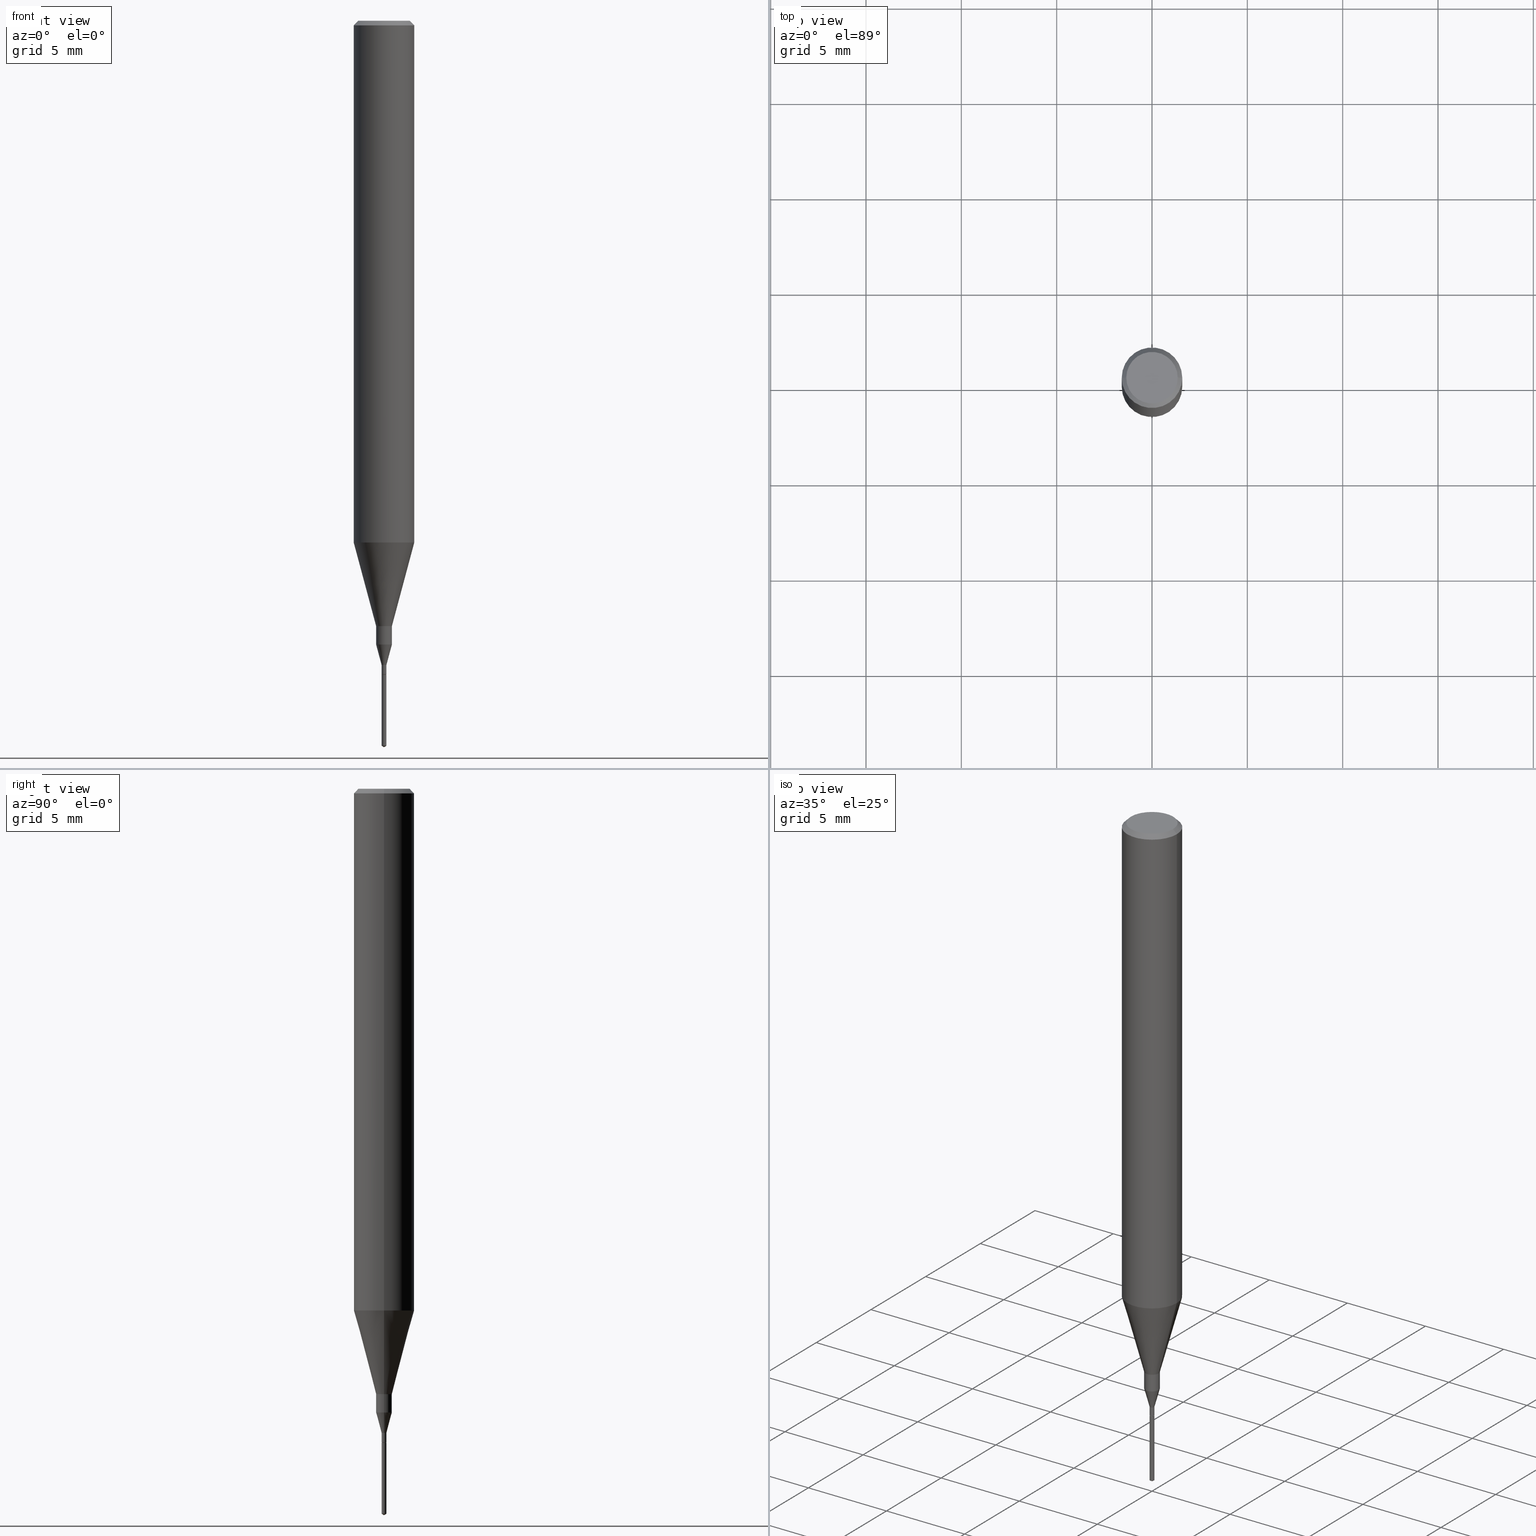
[diagram: canonical four-view strip — front | top / right | iso, engineering-drawing reading convention]
A machine part, canonical four-view strip (front | top / right | iso — engineering-drawing reading convention). The complete STEP part file that produces these views, byte-faithful:
ISO-10303-21;
HEADER;
FILE_DESCRIPTION (( 'STEP AP203' ),
    '1' );
FILE_NAME ('07090.STEP',
    '2024-04-19T13:29:49',
    ( '' ),
    ( '' ),
    'SwSTEP 2.0',
    'SolidWorks 2023',
    '' );
FILE_SCHEMA (( 'CONFIG_CONTROL_DESIGN' ));
ENDSEC;

DATA;
#1 = ORIENTED_EDGE ( 'NONE', *, *, #420, .F. ) ;
#2 = ORIENTED_EDGE ( 'NONE', *, *, #63, .T. ) ;
#3 = FACE_OUTER_BOUND ( 'NONE', #431, .T. ) ;
#4 = AXIS2_PLACEMENT_3D ( 'NONE', #442, #258, #283 ) ;
#5 = ORIENTED_EDGE ( 'NONE', *, *, #132, .F. ) ;
#6 = ORIENTED_EDGE ( 'NONE', *, *, #505, .T. ) ;
#7 = AXIS2_PLACEMENT_3D ( 'NONE', #215, #268, #448 ) ;
#8 = DIRECTION ( 'NONE',  ( 2.449828643397946138E-29, -3.485237803807878340E-15, -1.000000000000000000 ) ) ;
#9 = DIRECTION ( 'NONE',  ( 2.438088387897960049E-29, -3.491481338843145188E-15, -1.000000000000000000 ) ) ;
#10 = PRODUCT_RELATED_PRODUCT_CATEGORY ( 'detail', '', ( #350 ) ) ;
#11 = FACE_OUTER_BOUND ( 'NONE', #311, .T. ) ;
#12 = CARTESIAN_POINT ( 'NONE',  ( 0.06250000000000012490, -4.198131499960668153E-15, -1.077392650149939346 ) ) ;
#13 = CARTESIAN_POINT ( 'NONE',  ( 0.06250000000000000000, -4.615137624123754923E-16, -0.009375000000000067307 ) ) ;
#14 = DIRECTION ( 'NONE',  ( -2.445468806185136877E-29, 3.491481338843145188E-15, 1.000000000000000000 ) ) ;
#15 = ORIENTED_EDGE ( 'NONE', *, *, #117, .F. ) ;
#16 = CARTESIAN_POINT ( 'NONE',  ( -0.01624999999999999709, -4.315251812701535156E-15, -1.250000000000000000 ) ) ;
#17 = CARTESIAN_POINT ( 'NONE',  ( 2.634730117954813298E-29, -3.761696332605275695E-15, -1.077392650149939346 ) ) ;
#18 = CARTESIAN_POINT ( 'NONE',  ( 2.634730117954813298E-29, -3.761696332605275695E-15, -1.077392650149939346 ) ) ;
#19 = CONICAL_SURFACE ( 'NONE', #72, 0.06250000000000012490, 0.2617993877991501295 ) ;
#20 = ORIENTED_EDGE ( 'NONE', *, *, #63, .F. ) ;
#21 = CC_DESIGN_APPROVAL ( #244, ( #36 ) ) ;
#22 = EDGE_CURVE ( 'NONE', #37, #411, #98, .T. ) ;
#23 = DIRECTION ( 'NONE',  ( -2.445468806185136877E-29, 3.491481338843145188E-15, 1.000000000000000000 ) ) ;
#24 = DIRECTION ( 'NONE',  ( -1.000000000000000000, 6.982962677686266711E-15, 0.000000000000000000 ) ) ;
#25 = DIRECTION ( 'NONE',  ( -2.445468806185136597E-29, 3.491481338843145583E-15, 1.000000000000000000 ) ) ;
#26 = EDGE_CURVE ( 'NONE', #583, #462, #249, .T. ) ;
#27 = AXIS2_PLACEMENT_3D ( 'NONE', #418, #514, #424 ) ;
#28 = ADVANCED_FACE ( 'NONE', ( #49 ), #80, .T. ) ;
#29 = PERSON_AND_ORGANIZATION ( #222, #561 ) ;
#30 = ADVANCED_FACE ( 'NONE', ( #158 ), #552, .T. ) ;
#31 = ORIENTED_EDGE ( 'NONE', *, *, #586, .T. ) ;
#32 = DIRECTION ( 'NONE',  ( 1.000000000000000000, -6.982962677686224112E-15, 0.000000000000000000 ) ) ;
#33 = DIRECTION ( 'NONE',  ( 1.000000000000000000, -6.982962677686258033E-15, 0.000000000000000000 ) ) ;
#34 = LINE ( 'NONE', #115, #294 ) ;
#35 = CIRCLE ( 'NONE', #192, 0.005000000000000000104 ) ;
#36 = PRODUCT_DEFINITION_FORMATION_WITH_SPECIFIED_SOURCE ( 'ANY', '', #350, .NOT_KNOWN. ) ;
#37 = VERTEX_POINT ( 'NONE', #426 ) ;
#38 = DIRECTION ( 'NONE',  ( -6.982962677686265922E-15, -1.000000000000000000, 0.000000000000000000 ) ) ;
#39 = VECTOR ( 'NONE', #154, 39.37007874015748854 ) ;
#40 = EDGE_LOOP ( 'NONE', ( #573, #246, #502, #363 ) ) ;
#41 = CARTESIAN_POINT ( 'NONE',  ( 3.661497157083708426E-29, -5.225814767288156077E-15, -1.496995696904862116 ) ) ;
#42 = EDGE_LOOP ( 'NONE', ( #234, #590, #138, #128 ) ) ;
#43 = MANIFOLD_SOLID_BREP ( 'Body-Move/Copy2[1]', #203 ) ;
#44 = ORIENTED_EDGE ( 'NONE', *, *, #292, .T. ) ;
#45 = ORIENTED_EDGE ( 'NONE', *, *, #491, .F. ) ;
#46 = DIRECTION ( 'NONE',  ( -0.7071067811868059216, 7.493145998871288171E-15, 0.7071067811862891128 ) ) ;
#47 = AXIS2_PLACEMENT_3D ( 'NONE', #522, #464, #478 ) ;
#48 = EDGE_CURVE ( 'NONE', #462, #583, #405, .T. ) ;
#49 = FACE_OUTER_BOUND ( 'NONE', #42, .T. ) ;
#50 = CARTESIAN_POINT ( 'NONE',  ( 3.301382888349935078E-29, -4.713499807438246596E-15, -1.350000000000000089 ) ) ;
#51 = EDGE_LOOP ( 'NONE', ( #188, #498, #330, #369 ) ) ;
#52 = CIRCLE ( 'NONE', #366, 0.06250000000000012490 ) ;
#53 = VERTEX_POINT ( 'NONE', #511 ) ;
#54 = SECURITY_CLASSIFICATION ( '', '', #81 ) ;
#55 = DIRECTION ( 'NONE',  ( -2.445468806185136597E-29, 3.491481338843145583E-15, 1.000000000000000000 ) ) ;
#56 = CARTESIAN_POINT ( 'NONE',  ( 3.149799106604895177E-29, -4.497078340971170212E-15, -1.288014428414850254 ) ) ;
#57 = CARTESIAN_POINT ( 'NONE',  ( 0.000000000000000000, 0.000000000000000000, 0.000000000000000000 ) ) ;
#58 = CARTESIAN_POINT ( 'NONE',  ( 0.000000000000000000, 0.000000000000000000, 0.000000000000000000 ) ) ;
#59 = CARTESIAN_POINT ( 'NONE',  ( -3.491481338839831972E-17, -0.005000000000004713348, -1.350000000000000089 ) ) ;
#60 = EDGE_CURVE ( 'NONE', #53, #245, #242, .T. ) ;
#61 = AXIS2_PLACEMENT_3D ( 'NONE', #97, #229, #412 ) ;
#62 = FACE_OUTER_BOUND ( 'NONE', #452, .T. ) ;
#63 = EDGE_CURVE ( 'NONE', #501, #281, #198, .T. ) ;
#64 = CARTESIAN_POINT ( 'NONE',  ( 3.674846187787069844E-29, -5.227856705711817904E-15, -1.500000000000000222 ) ) ;
#65 = AXIS2_PLACEMENT_3D ( 'NONE', #252, #9, #558 ) ;
#66 = CARTESIAN_POINT ( 'NONE',  ( -9.278108940561071411E-28, 1.319778012860802633E-13, 37.87007874015748143 ) ) ;
#67 = CARTESIAN_POINT ( 'NONE',  ( 3.301382888349935078E-29, -4.713499807438246596E-15, -1.350000000000000089 ) ) ;
#68 = APPLICATION_PROTOCOL_DEFINITION ( 'international standard', 'config_control_design', 1994, #177 ) ;
#69 = DATE_AND_TIME ( #172, #276 ) ;
#70 = EDGE_CURVE ( 'NONE', #541, #456, #284, .T. ) ;
#71 = DIRECTION ( 'NONE',  ( -2.449828643397946418E-29, 3.485237803807878340E-15, 1.000000000000000000 ) ) ;
#72 = AXIS2_PLACEMENT_3D ( 'NONE', #153, #340, #385 ) ;
#73 = DIRECTION ( 'NONE',  ( 0.000000000000000000, 0.000000000000000000, 1.000000000000000000 ) ) ;
#74 = CONICAL_SURFACE ( 'NONE', #101, 65.52281426576574574, 1.029744258676636326 ) ;
#75 = DIRECTION ( 'NONE',  ( -2.445468806185136597E-29, 3.491481338843145583E-15, 1.000000000000000000 ) ) ;
#76 = CARTESIAN_POINT ( 'NONE',  ( -3.491481338839831972E-17, -0.005000000000004713348, -1.350000000000000089 ) ) ;
#77 = EDGE_CURVE ( 'NONE', #182, #548, #251, .T. ) ;
#78 = ADVANCED_FACE ( 'NONE', ( #214 ), #572, .T. ) ;
#79 = CARTESIAN_POINT ( 'NONE',  ( 0.01624999999999999709, -4.477824817066334148E-15, -1.250000000000000000 ) ) ;
#80 = CONICAL_SURFACE ( 'NONE', #513, 0.004500000000000000527, 0.7853981633978137644 ) ;
#81 = SECURITY_CLASSIFICATION_LEVEL ( 'unclassified' ) ;
#82 = APPROVAL_PERSON_ORGANIZATION ( #308, #244, #264 ) ;
#83 = PERSON_AND_ORGANIZATION ( #222, #561 ) ;
#84 = ORIENTED_EDGE ( 'NONE', *, *, #420, .T. ) ;
#85 = DIRECTION ( 'NONE',  ( -2.445468806185136597E-29, 3.491481338843145583E-15, 1.000000000000000000 ) ) ;
#86 = ORIENTED_EDGE ( 'NONE', *, *, #271, .F. ) ;
#87 = CARTESIAN_POINT ( 'NONE',  ( 3.661497157083708426E-29, -5.225814767288156077E-15, -1.496995696904862116 ) ) ;
#88 = ORIENTED_EDGE ( 'NONE', *, *, #446, .F. ) ;
#89 = AXIS2_PLACEMENT_3D ( 'NONE', #333, #55, #288 ) ;
#90 = ORIENTED_EDGE ( 'NONE', *, *, #423, .T. ) ;
#91 = VECTOR ( 'NONE', #380, 39.37007874015748143 ) ;
#92 = PERSON_AND_ORGANIZATION ( #222, #561 ) ;
#93 = ORIENTED_EDGE ( 'NONE', *, *, #580, .F. ) ;
#94 = VERTEX_POINT ( 'NONE', #197 ) ;
#95 = EDGE_CURVE ( 'NONE', #205, #582, #129, .T. ) ;
#96 = FACE_OUTER_BOUND ( 'NONE', #324, .T. ) ;
#97 = CARTESIAN_POINT ( 'NONE',  ( 2.292627005798581937E-31, -3.273263755165472033E-17, -0.009375000000000067307 ) ) ;
#98 = CIRCLE ( 'NONE', #230, 0.004999999999999999237 ) ;
#99 = CARTESIAN_POINT ( 'NONE',  ( -0.06250000000000006939, 4.440892098500631092E-16, -3.074334431409319267E-30 ) ) ;
#100 = CARTESIAN_POINT ( 'NONE',  ( 0.000000000000000000, 0.000000000000000000, 0.000000000000000000 ) ) ;
#101 = AXIS2_PLACEMENT_3D ( 'NONE', #66, #255, #387 ) ;
#102 = CARTESIAN_POINT ( 'NONE',  ( 2.292627005798581937E-31, -3.273263755165472033E-17, -0.009375000000000067307 ) ) ;
#103 = ADVANCED_FACE ( 'NONE', ( #96 ), #151, .T. ) ;
#104 = CARTESIAN_POINT ( 'NONE',  ( 3.056836007731421306E-29, -4.364351673553932471E-15, -1.250000000000000000 ) ) ;
#105 = DIRECTION ( 'NONE',  ( -2.445468806185136877E-29, 3.491481338843145188E-15, 1.000000000000000000 ) ) ;
#106 = FACE_OUTER_BOUND ( 'NONE', #40, .T. ) ;
#107 = APPLICATION_CONTEXT ( 'configuration controlled 3d designs of mechanical parts and assemblies' ) ;
#108 = DIRECTION ( 'NONE',  ( 1.000000000000000000, -6.982962677686266711E-15, 4.875930095424100059E-29 ) ) ;
#109 = CONICAL_SURFACE ( 'NONE', #450, 0.01625000000000000056, 0.2617993877991508511 ) ;
#110 = DIRECTION ( 'NONE',  ( -2.445468806185136597E-29, 3.491481338843145583E-15, 1.000000000000000000 ) ) ;
#111 = DIRECTION ( 'NONE',  ( 2.445468806185136597E-29, -3.491481338843145583E-15, -1.000000000000000000 ) ) ;
#112 = AXIS2_PLACEMENT_3D ( 'NONE', #122, #75, #521 ) ;
#113 = LOCAL_TIME ( 9, 29, 48.00000000000000000, #356 ) ;
#114 = LINE ( 'NONE', #12, #287 ) ;
#115 = CARTESIAN_POINT ( 'NONE',  ( 3.552713678803801277E-17, 0.004999999999995286860, -1.350000000000000089 ) ) ;
#116 = EDGE_CURVE ( 'NONE', #130, #238, #347, .T. ) ;
#117 = EDGE_CURVE ( 'NONE', #368, #501, #375, .T. ) ;
#118 = EDGE_LOOP ( 'NONE', ( #241, #93 ) ) ;
#119 = LENGTH_MEASURE_WITH_UNIT ( LENGTH_MEASURE( 0.02539999999999999897 ), #263 );
#120 = DIRECTION ( 'NONE',  ( 1.000000000000000000, -6.982962677686288799E-15, 0.000000000000000000 ) ) ;
#121 = DATE_AND_TIME ( #531, #113 ) ;
#122 = CARTESIAN_POINT ( 'NONE',  ( 0.000000000000000000, 0.000000000000000000, 0.000000000000000000 ) ) ;
#123 = AXIS2_PLACEMENT_3D ( 'NONE', #300, #562, #342 ) ;
#124 = VECTOR ( 'NONE', #334, 39.37007874015748143 ) ;
#125 = CARTESIAN_POINT ( 'NONE',  ( -0.05312499999999999861, 3.873362110279099094E-16, -5.787680772773044021E-18 ) ) ;
#126 = ORIENTED_EDGE ( 'NONE', *, *, #390, .F. ) ;
#127 = APPROVAL_DATE_TIME ( #140, #244 ) ;
#128 = ORIENTED_EDGE ( 'NONE', *, *, #116, .F. ) ;
#129 = CIRCLE ( 'NONE', #237, 0.05312499999999999861 ) ;
#130 = VERTEX_POINT ( 'NONE', #564 ) ;
#131 = ORIENTED_EDGE ( 'NONE', *, *, #319, .T. ) ;
#132 = EDGE_CURVE ( 'NONE', #245, #281, #468, .T. ) ;
#133 = DIRECTION ( 'NONE',  ( -2.445468806185136597E-29, 3.491481338843145583E-15, 1.000000000000000000 ) ) ;
#134 = ORIENTED_EDGE ( 'NONE', *, *, #376, .F. ) ;
#135 = DIRECTION ( 'NONE',  ( -5.985567269335878171E-15, -0.8571673007021011204, 0.5150380749100726963 ) ) ;
#136 = COORDINATED_UNIVERSAL_TIME_OFFSET ( 5, 0, .BEHIND. ) ;
#137 = EDGE_LOOP ( 'NONE', ( #31, #2, #5, #499 ) ) ;
#138 = ORIENTED_EDGE ( 'NONE', *, *, #277, .F. ) ;
#139 = VECTOR ( 'NONE', #135, 39.37007874015748143 ) ;
#140 = DATE_AND_TIME ( #587, #367 ) ;
#141 = ORIENTED_EDGE ( 'NONE', *, *, #449, .F. ) ;
#142 = CIRCLE ( 'NONE', #515, 0.01625000000000000056 ) ;
#143 = VECTOR ( 'NONE', #553, 39.37007874015748143 ) ;
#144 = CC_DESIGN_DATE_AND_TIME_ASSIGNMENT ( #419, #507, ( #54 ) ) ;
#145 = CARTESIAN_POINT ( 'NONE',  ( -0.01625000000000000056, -4.381615146410154026E-15, -1.288014428414850254 ) ) ;
#146 = ORIENTED_EDGE ( 'NONE', *, *, #116, .T. ) ;
#147 = PLANE ( 'NONE',  #275 ) ;
#148 = DIRECTION ( 'NONE',  ( -6.982962677686265922E-15, -1.000000000000000000, 0.000000000000000000 ) ) ;
#149 = ORIENTED_EDGE ( 'NONE', *, *, #566, .T. ) ;
#150 = ORIENTED_EDGE ( 'NONE', *, *, #219, .F. ) ;
#151 = CYLINDRICAL_SURFACE ( 'NONE', #352, 0.01625000000000000056 ) ;
#152 = DIRECTION ( 'NONE',  ( -2.449828643397946418E-29, 3.485237803807878340E-15, 1.000000000000000000 ) ) ;
#153 = CARTESIAN_POINT ( 'NONE',  ( 2.634730117954813298E-29, -3.761696332605275695E-15, -1.077392650149939346 ) ) ;
#154 = DIRECTION ( 'NONE',  ( 0.2588190451025220717, 1.565188264969615854E-15, 0.9659258262890678681 ) ) ;
#155 = CARTESIAN_POINT ( 'NONE',  ( -0.005000000000000014849, -4.642184986927100337E-15, -1.329999999999999849 ) ) ;
#156 = EDGE_LOOP ( 'NONE', ( #86, #44, #374 ) ) ;
#157 = CIRCLE ( 'NONE', #459, 0.004500000000000000527 ) ;
#158 = FACE_OUTER_BOUND ( 'NONE', #240, .T. ) ;
#159 = LINE ( 'NONE', #393, #414 ) ;
#160 = DIRECTION ( 'NONE',  ( -2.445468806185136877E-29, 3.491481338843145188E-15, 1.000000000000000000 ) ) ;
#161 = DIRECTION ( 'NONE',  ( 1.000000000000000000, -6.982962677686265922E-15, 4.876176775795935793E-29 ) ) ;
#162 = DIRECTION ( 'NONE',  ( -6.982962677686265922E-15, -1.000000000000000000, 0.000000000000000000 ) ) ;
#163 = VECTOR ( 'NONE', #14, 39.37007874015748143 ) ;
#164 = DIRECTION ( 'NONE',  ( 1.000000000000000000, -6.982962677686265922E-15, 4.876176775795935232E-29 ) ) ;
#165 = EDGE_CURVE ( 'NONE', #339, #368, #550, .T. ) ;
#166 = VECTOR ( 'NONE', #152, 39.37007874015748143 ) ;
#167 = ORIENTED_EDGE ( 'NONE', *, *, #292, .F. ) ;
#168 = MECHANICAL_CONTEXT ( 'NONE', #107, 'mechanical' ) ;
#169 = DIRECTION ( 'NONE',  ( -2.449828643397946418E-29, 3.485237803807878340E-15, 1.000000000000000000 ) ) ;
#170 = ORIENTED_EDGE ( 'NONE', *, *, #70, .F. ) ;
#171 = PRODUCT_DEFINITION ( 'UNKNOWN', '', #36, #401 ) ;
#172 = CALENDAR_DATE ( 2024, 19, 4 ) ;
#173 = ORIENTED_EDGE ( 'NONE', *, *, #400, .T. ) ;
#174 = EDGE_CURVE ( 'NONE', #130, #339, #525, .T. ) ;
#175 = VECTOR ( 'NONE', #305, 39.37007874015748143 ) ;
#176 =( NAMED_UNIT ( * ) SI_UNIT ( $, .STERADIAN. ) SOLID_ANGLE_UNIT ( ) );
#177 = APPLICATION_CONTEXT ( 'configuration controlled 3d designs of mechanical parts and assemblies' ) ;
#178 = DIRECTION ( 'NONE',  ( -6.982962677686265922E-15, -1.000000000000000000, 0.000000000000000000 ) ) ;
#179 =( NAMED_UNIT ( * ) PLANE_ANGLE_UNIT ( ) SI_UNIT ( $, .RADIAN. ) );
#180 = PERSON_AND_ORGANIZATION_ROLE ( 'creator' ) ;
#181 = ORIENTED_EDGE ( 'NONE', *, *, #48, .T. ) ;
#182 = VERTEX_POINT ( 'NONE', #16 ) ;
#183 = AXIS2_PLACEMENT_3D ( 'NONE', #41, #370, #148 ) ;
#184 = CC_DESIGN_PERSON_AND_ORGANIZATION_ASSIGNMENT ( #228, #313, ( #54 ) ) ;
#185 = CARTESIAN_POINT ( 'NONE',  ( 3.301382888349935078E-29, -4.713499807438246596E-15, -1.350000000000000089 ) ) ;
#186 = LOCAL_TIME ( 9, 29, 48.00000000000000000, #136 ) ;
#187 = EDGE_LOOP ( 'NONE', ( #126, #458, #6, #181 ) ) ;
#188 = ORIENTED_EDGE ( 'NONE', *, *, #490, .F. ) ;
#189 = ORIENTED_EDGE ( 'NONE', *, *, #277, .T. ) ;
#190 = ADVANCED_FACE ( 'NONE', ( #3 ), #147, .F. ) ;
#191 = ORIENTED_EDGE ( 'NONE', *, *, #523, .F. ) ;
#192 = AXIS2_PLACEMENT_3D ( 'NONE', #216, #169, #178 ) ;
#193 = ORIENTED_EDGE ( 'NONE', *, *, #77, .F. ) ;
#194 = DIRECTION ( 'NONE',  ( 6.982962677686265922E-15, 1.000000000000000000, -3.485237803807878340E-15 ) ) ;
#195 = CARTESIAN_POINT ( 'NONE',  ( 3.300160153946842837E-29, -4.711754066768825881E-15, -1.349500000000000366 ) ) ;
#196 = DIRECTION ( 'NONE',  ( 1.000000000000000000, -6.982962677686266711E-15, 4.876176775795935793E-29 ) ) ;
#197 = CARTESIAN_POINT ( 'NONE',  ( 0.06250000000000012490, -4.198131499960668153E-15, -1.077392650149939346 ) ) ;
#198 = LINE ( 'NONE', #382, #437 ) ;
#199 = FACE_OUTER_BOUND ( 'NONE', #187, .T. ) ;
#200 = LINE ( 'NONE', #384, #175 ) ;
#201 = CARTESIAN_POINT ( 'NONE',  ( 2.634730117954813298E-29, -3.761696332605275695E-15, -1.077392650149939346 ) ) ;
#202 = ADVANCED_FACE ( 'NONE', ( #378 ), #19, .T. ) ;
#203 = CLOSED_SHELL ( 'NONE', ( #232, #413, #432, #213, #190 ) ) ;
#204 = DIRECTION ( 'NONE',  ( -6.982962677686265133E-15, -1.000000000000000000, 3.468864327941736604E-15 ) ) ;
#205 = VERTEX_POINT ( 'NONE', #307 ) ;
#206 = AXIS2_PLACEMENT_3D ( 'NONE', #195, #527, #518 ) ;
#207 = CARTESIAN_POINT ( 'NONE',  ( 0.004500000000000000527, -4.744923139487834449E-15, -1.350000000000000089 ) ) ;
#208 = LINE ( 'NONE', #524, #388 ) ;
#209 = DIRECTION ( 'NONE',  ( -2.449828643397946418E-29, 3.485237803807878340E-15, 1.000000000000000000 ) ) ;
#210 = CARTESIAN_POINT ( 'NONE',  ( 0.005000000000000003574, -3.491481338843135327E-17, 2.438088387897969736E-31 ) ) ;
#211 = ADVANCED_FACE ( 'NONE', ( #11 ), #253, .T. ) ;
#212 = CARTESIAN_POINT ( 'NONE',  ( 3.149799106604895177E-29, -4.497078340971170212E-15, -1.288014428414850254 ) ) ;
#213 = ADVANCED_FACE ( 'NONE', ( #106 ), #381, .T. ) ;
#214 = FACE_OUTER_BOUND ( 'NONE', #269, .T. ) ;
#215 = CARTESIAN_POINT ( 'NONE',  ( 1.415359278996747967E-46, -2.020757941330909984E-32, -5.787680772770392401E-18 ) ) ;
#216 = CARTESIAN_POINT ( 'NONE',  ( 3.301382888349935078E-29, -4.713499807438246596E-15, -1.350000000000000089 ) ) ;
#217 = CONICAL_SURFACE ( 'NONE', #549, 0.004500000000000000527, 0.7853981633978137644 ) ;
#218 = PERSON_AND_ORGANIZATION_ROLE ( 'creator' ) ;
#219 = EDGE_CURVE ( 'NONE', #94, #583, #391, .T. ) ;
#220 = EDGE_CURVE ( 'NONE', #265, #94, #574, .T. ) ;
#221 = PERSON_AND_ORGANIZATION_ROLE ( 'design_owner' ) ;
#222 = PERSON ( 'UNSPECIFIED', 'UNSPECIFIED', 'UNSPECIFIED', ('UNSPECIFIED'), ('UNSPECIFIED'), ('UNSPECIFIED') ) ;
#223 = FACE_OUTER_BOUND ( 'NONE', #428, .T. ) ;
#224 = AXIS2_PLACEMENT_3D ( 'NONE', #201, #256, #351 ) ;
#225 = FACE_OUTER_BOUND ( 'NONE', #325, .T. ) ;
#226 = AXIS2_PLACEMENT_3D ( 'NONE', #410, #25, #357 ) ;
#227 = DIRECTION ( 'NONE',  ( 1.000000000000000000, -6.982962677686344019E-15, 0.000000000000000000 ) ) ;
#228 = PERSON_AND_ORGANIZATION ( #222, #561 ) ;
#229 = DIRECTION ( 'NONE',  ( -2.445468806185136597E-29, 3.491481338843145583E-15, 1.000000000000000000 ) ) ;
#230 = AXIS2_PLACEMENT_3D ( 'NONE', #87, #509, #38 ) ;
#231 = AXIS2_PLACEMENT_3D ( 'NONE', #259, #73, #484 ) ;
#232 = ADVANCED_FACE ( 'NONE', ( #297 ), #338, .T. ) ;
#233 = ORIENTED_EDGE ( 'NONE', *, *, #399, .T. ) ;
#234 = ORIENTED_EDGE ( 'NONE', *, *, #174, .T. ) ;
#235 = CARTESIAN_POINT ( 'NONE',  ( -0.004500000000000000527, -4.681525384329041665E-15, -1.350000000000000089 ) ) ;
#236 = EDGE_LOOP ( 'NONE', ( #455, #233, #551, #45 ) ) ;
#237 = AXIS2_PLACEMENT_3D ( 'NONE', #474, #508, #108 ) ;
#238 = VERTEX_POINT ( 'NONE', #346 ) ;
#239 = CARTESIAN_POINT ( 'NONE',  ( -9.278108940561071411E-28, 1.319778012860802633E-13, 37.87007874015748143 ) ) ;
#240 = EDGE_LOOP ( 'NONE', ( #15, #279, #317, #1 ) ) ;
#241 = ORIENTED_EDGE ( 'NONE', *, *, #174, .F. ) ;
#242 = LINE ( 'NONE', #429, #39 ) ;
#243 = DIRECTION ( 'NONE',  ( -2.445468806185136597E-29, 3.491481338843145583E-15, 1.000000000000000000 ) ) ;
#244 = APPROVAL ( #492, 'UNSPECIFIED' ) ;
#245 = VERTEX_POINT ( 'NONE', #482 ) ;
#246 = ORIENTED_EDGE ( 'NONE', *, *, #22, .T. ) ;
#247 = LINE ( 'NONE', #210, #337 ) ;
#248 = VERTEX_POINT ( 'NONE', #526 ) ;
#249 = CIRCLE ( 'NONE', #61, 0.06250000000000000000 ) ;
#250 = DIRECTION ( 'NONE',  ( 0.7071067811868059216, -2.468850131084963642E-15, 0.7071067811862891128 ) ) ;
#251 = CIRCLE ( 'NONE', #123, 0.01624999999999999709 ) ;
#252 = CARTESIAN_POINT ( 'NONE',  ( 7.076796394983739835E-47, -1.010378970665454992E-32, -2.893840386385196200E-18 ) ) ;
#253 = CYLINDRICAL_SURFACE ( 'NONE', #396, 0.06250000000000006939 ) ;
#254 = CC_DESIGN_PERSON_AND_ORGANIZATION_ASSIGNMENT ( #29, #218, ( #171 ) ) ;
#255 = DIRECTION ( 'NONE',  ( -2.449828643397946418E-29, 3.485237803807878340E-15, 1.000000000000000000 ) ) ;
#256 = DIRECTION ( 'NONE',  ( -2.445468806185136597E-29, 3.491481338843145583E-15, 1.000000000000000000 ) ) ;
#257 = EDGE_LOOP ( 'NONE', ( #529, #131, #170, #519 ) ) ;
#258 = DIRECTION ( 'NONE',  ( -2.445468806185136597E-29, 3.491481338843145583E-15, 1.000000000000000000 ) ) ;
#259 = CARTESIAN_POINT ( 'NONE',  ( 0.000000000000000000, 0.000000000000000000, 0.000000000000000000 ) ) ;
#260 = APPROVAL_DATE_TIME ( #69, #544 ) ;
#261 = FACE_OUTER_BOUND ( 'NONE', #322, .T. ) ;
#262 =( GEOMETRIC_REPRESENTATION_CONTEXT ( 3 ) GLOBAL_UNCERTAINTY_ASSIGNED_CONTEXT ( ( #299 ) ) GLOBAL_UNIT_ASSIGNED_CONTEXT ( ( #493, #179, #176 ) ) REPRESENTATION_CONTEXT ( 'NONE', 'WORKASPACE' ) );
#263 =( LENGTH_UNIT ( ) NAMED_UNIT ( * ) SI_UNIT ( $, .METRE. ) );
#264 = APPROVAL_ROLE ( '' ) ;
#265 = VERTEX_POINT ( 'NONE', #293 ) ;
#266 = EDGE_LOOP ( 'NONE', ( #149, #588 ) ) ;
#267 = DIRECTION ( 'NONE',  ( -1.000000000000000000, 6.982962677686266711E-15, 0.000000000000000000 ) ) ;
#268 = DIRECTION ( 'NONE',  ( -2.445468806185136597E-29, 3.491481338843145583E-15, 1.000000000000000000 ) ) ;
#269 = EDGE_LOOP ( 'NONE', ( #90, #354, #332, #150 ) ) ;
#270 = CONICAL_SURFACE ( 'NONE', #528, 0.01625000000000000056, 0.2617993877991508511 ) ;
#271 = EDGE_CURVE ( 'NONE', #248, #37, #477, .T. ) ;
#272 = ORIENTED_EDGE ( 'NONE', *, *, #376, .T. ) ;
#273 = MANIFOLD_SOLID_BREP ( 'Body-Move/Copy2[2]', #533 ) ;
#274 = ADVANCED_FACE ( 'NONE', ( #394 ), #323, .T. ) ;
#275 = AXIS2_PLACEMENT_3D ( 'NONE', #510, #8, #194 ) ;
#276 = LOCAL_TIME ( 9, 29, 48.00000000000000000, #402 ) ;
#277 = EDGE_CURVE ( 'NONE', #238, #368, #303, .T. ) ;
#278 = AXIS2_PLACEMENT_3D ( 'NONE', #383, #291, #164 ) ;
#279 = ORIENTED_EDGE ( 'NONE', *, *, #446, .T. ) ;
#280 = CALENDAR_DATE ( 2024, 19, 4 ) ;
#281 = VERTEX_POINT ( 'NONE', #145 ) ;
#282 = ORIENTED_EDGE ( 'NONE', *, *, #219, .T. ) ;
#283 = DIRECTION ( 'NONE',  ( 1.000000000000000000, -6.982962677686266711E-15, 4.876176775795935793E-29 ) ) ;
#284 = CIRCLE ( 'NONE', #422, 0.005000000000000000104 ) ;
#285 = FACE_OUTER_BOUND ( 'NONE', #137, .T. ) ;
#286 = AXIS2_PLACEMENT_3D ( 'NONE', #104, #530, #120 ) ;
#287 = VECTOR ( 'NONE', #569, 39.37007874015747433 ) ;
#288 = DIRECTION ( 'NONE',  ( 1.000000000000000000, -6.982962677686266711E-15, 0.000000000000000000 ) ) ;
#289 = DIRECTION ( 'NONE',  ( -2.449828643397946418E-29, 3.485237803807878340E-15, 1.000000000000000000 ) ) ;
#290 = LINE ( 'NONE', #59, #166 ) ;
#291 = DIRECTION ( 'NONE',  ( -2.445468806185136597E-29, 3.491481338843145583E-15, 1.000000000000000000 ) ) ;
#292 = EDGE_CURVE ( 'NONE', #248, #411, #318, .T. ) ;
#293 = CARTESIAN_POINT ( 'NONE',  ( -0.06250000000000012490, -3.317607122755211895E-15, -1.077392650149939346 ) ) ;
#294 = VECTOR ( 'NONE', #71, 39.37007874015748143 ) ;
#295 = CARTESIAN_POINT ( 'NONE',  ( 3.252473512226230867E-29, -4.643670180661383298E-15, -1.329999999999999849 ) ) ;
#296 = CIRCLE ( 'NONE', #206, 0.004999999999999991430 ) ;
#297 = FACE_OUTER_BOUND ( 'NONE', #257, .T. ) ;
#298 = ORIENTED_EDGE ( 'NONE', *, *, #117, .T. ) ;
#299 = UNCERTAINTY_MEASURE_WITH_UNIT (LENGTH_MEASURE( 1.000000000000000082E-05 ), #493, 'distance_accuracy_value', 'NONE');
#300 = CARTESIAN_POINT ( 'NONE',  ( 3.056836007731421306E-29, -4.364351673553932471E-15, -1.250000000000000000 ) ) ;
#301 = PERSON_AND_ORGANIZATION ( #222, #561 ) ;
#302 = ORIENTED_EDGE ( 'NONE', *, *, #505, .F. ) ;
#303 = CIRCLE ( 'NONE', #364, 0.004999999999999991430 ) ;
#304 = DIRECTION ( 'NONE',  ( 1.000000000000000000, -6.982962677686224112E-15, 0.000000000000000000 ) ) ;
#305 = DIRECTION ( 'NONE',  ( -2.445468806185136877E-29, 3.491481338843145188E-15, 1.000000000000000000 ) ) ;
#306 = CC_DESIGN_PERSON_AND_ORGANIZATION_ASSIGNMENT ( #83, #180, ( #36 ) ) ;
#307 = CARTESIAN_POINT ( 'NONE',  ( 0.05312499999999999861, -4.129888592719939842E-16, -5.787680772767651417E-18 ) ) ;
#308 = PERSON_AND_ORGANIZATION ( #222, #561 ) ;
#309 = LINE ( 'NONE', #13, #91 ) ;
#310 = DIRECTION ( 'NONE',  ( -2.445468806185136597E-29, 3.491481338843145583E-15, 1.000000000000000000 ) ) ;
#311 = EDGE_LOOP ( 'NONE', ( #191, #365, #282, #404 ) ) ;
#312 = EDGE_CURVE ( 'NONE', #411, #37, #546, .T. ) ;
#313 = PERSON_AND_ORGANIZATION_ROLE ( 'classification_officer' ) ;
#314 = AXIS2_PLACEMENT_3D ( 'NONE', #295, #430, #512 ) ;
#315 = APPROVAL_PERSON_ORGANIZATION ( #301, #544, #535 ) ;
#316 = APPROVAL_STATUS ( 'not_yet_approved' ) ;
#317 = ORIENTED_EDGE ( 'NONE', *, *, #449, .T. ) ;
#318 = LINE ( 'NONE', #585, #139 ) ;
#319 = EDGE_CURVE ( 'NONE', #37, #456, #34, .T. ) ;
#320 = DIRECTION ( 'NONE',  ( 1.000000000000000000, -6.982962677686224112E-15, 0.000000000000000000 ) ) ;
#321 = ORIENTED_EDGE ( 'NONE', *, *, #490, .T. ) ;
#322 = EDGE_LOOP ( 'NONE', ( #189, #298, #453, #141 ) ) ;
#323 = CONICAL_SURFACE ( 'NONE', #559, 0.06250000000000000000, 0.7853981633974452814 ) ;
#324 = EDGE_LOOP ( 'NONE', ( #358, #272, #421, #193 ) ) ;
#325 = EDGE_LOOP ( 'NONE', ( #20, #84, #415, #134 ) ) ;
#326 = AXIS2_PLACEMENT_3D ( 'NONE', #17, #349, #568 ) ;
#327 = PERSON_AND_ORGANIZATION ( #222, #561 ) ;
#328 = CC_DESIGN_SECURITY_CLASSIFICATION ( #54, ( #36 ) ) ;
#329 = ORIENTED_EDGE ( 'NONE', *, *, #483, .F. ) ;
#330 = ORIENTED_EDGE ( 'NONE', *, *, #483, .T. ) ;
#331 = ORIENTED_EDGE ( 'NONE', *, *, #390, .T. ) ;
#332 = ORIENTED_EDGE ( 'NONE', *, *, #26, .F. ) ;
#333 = CARTESIAN_POINT ( 'NONE',  ( 2.292627005798581937E-31, -3.273263755165472033E-17, -0.009375000000000067307 ) ) ;
#334 = DIRECTION ( 'NONE',  ( -2.445468806185136877E-29, 3.491481338843145188E-15, 1.000000000000000000 ) ) ;
#335 = LINE ( 'NONE', #379, #143 ) ;
#336 = ADVANCED_BREP_SHAPE_REPRESENTATION ( '07090', ( #43, #273, #231 ), #262 ) ;
#337 = VECTOR ( 'NONE', #23, 39.37007874015748143 ) ;
#338 = CYLINDRICAL_SURFACE ( 'NONE', #487, 0.005000000000000000104 ) ;
#339 = VERTEX_POINT ( 'NONE', #532 ) ;
#340 = DIRECTION ( 'NONE',  ( -2.445468806185136597E-29, 3.491481338843145583E-15, 1.000000000000000000 ) ) ;
#341 = DIRECTION ( 'NONE',  ( 1.000000000000000000, -6.982962677686265922E-15, 4.876176775795935793E-29 ) ) ;
#342 = DIRECTION ( 'NONE',  ( 1.000000000000000000, -6.982962677686288799E-15, 0.000000000000000000 ) ) ;
#343 = DIMENSIONAL_EXPONENTS ( 1.000000000000000000, 0.000000000000000000, 0.000000000000000000, 0.000000000000000000, 0.000000000000000000, 0.000000000000000000, 0.000000000000000000 ) ;
#344 = PLANE ( 'NONE',  #451 ) ;
#345 = APPROVAL ( #316, 'UNSPECIFIED' ) ;
#346 = CARTESIAN_POINT ( 'NONE',  ( 0.004999999999999991430, -4.746668880157257530E-15, -1.349500000000000366 ) ) ;
#347 = LINE ( 'NONE', #207, #570 ) ;
#348 = LINE ( 'NONE', #99, #124 ) ;
#349 = DIRECTION ( 'NONE',  ( -2.445468806185136597E-29, 3.491481338843145583E-15, 1.000000000000000000 ) ) ;
#350 = PRODUCT ( '07090', '07090', '', ( #168 ) ) ;
#351 = DIRECTION ( 'NONE',  ( 1.000000000000000000, -6.982962677686264344E-15, 0.000000000000000000 ) ) ;
#352 = AXIS2_PLACEMENT_3D ( 'NONE', #57, #556, #433 ) ;
#353 = FACE_OUTER_BOUND ( 'NONE', #118, .T. ) ;
#354 = ORIENTED_EDGE ( 'NONE', *, *, #523, .T. ) ;
#355 = ADVANCED_FACE ( 'NONE', ( #225 ), #109, .T. ) ;
#356 = COORDINATED_UNIVERSAL_TIME_OFFSET ( 5, 0, .BEHIND. ) ;
#357 = DIRECTION ( 'NONE',  ( 1.000000000000000000, -6.982962677686311676E-15, 0.000000000000000000 ) ) ;
#358 = ORIENTED_EDGE ( 'NONE', *, *, #399, .F. ) ;
#359 = CIRCLE ( 'NONE', #7, 0.05312499999999999861 ) ;
#360 = EDGE_CURVE ( 'NONE', #456, #541, #35, .T. ) ;
#361 = APPLICATION_PROTOCOL_DEFINITION ( 'international standard', 'config_control_design', 1994, #107 ) ;
#362 = COORDINATED_UNIVERSAL_TIME_OFFSET ( 5, 0, .BEHIND. ) ;
#363 = ORIENTED_EDGE ( 'NONE', *, *, #360, .F. ) ;
#364 = AXIS2_PLACEMENT_3D ( 'NONE', #494, #85, #227 ) ;
#365 = ORIENTED_EDGE ( 'NONE', *, *, #220, .T. ) ;
#366 = AXIS2_PLACEMENT_3D ( 'NONE', #18, #110, #441 ) ;
#367 = LOCAL_TIME ( 9, 29, 48.00000000000000000, #543 ) ;
#368 = VERTEX_POINT ( 'NONE', #481 ) ;
#369 = ORIENTED_EDGE ( 'NONE', *, *, #220, .F. ) ;
#370 = DIRECTION ( 'NONE',  ( -2.449828643397946418E-29, 3.485237803807878340E-15, 1.000000000000000000 ) ) ;
#371 = DATE_AND_TIME ( #373, #186 ) ;
#372 = ORIENTED_EDGE ( 'NONE', *, *, #271, .T. ) ;
#373 = CALENDAR_DATE ( 2024, 19, 4 ) ;
#374 = ORIENTED_EDGE ( 'NONE', *, *, #22, .F. ) ;
#375 = LINE ( 'NONE', #392, #457 ) ;
#376 = EDGE_CURVE ( 'NONE', #281, #245, #142, .T. ) ;
#377 = EDGE_LOOP ( 'NONE', ( #173, #321, #547, #329 ) ) ;
#378 = FACE_OUTER_BOUND ( 'NONE', #377, .T. ) ;
#379 = CARTESIAN_POINT ( 'NONE',  ( -0.06250000000000000000, 4.037025298037369491E-16, -0.009375000000000067307 ) ) ;
#380 = DIRECTION ( 'NONE',  ( 0.7071067811865453523, -7.319954787623248157E-15, -0.7071067811865496822 ) ) ;
#381 = CYLINDRICAL_SURFACE ( 'NONE', #503, 0.005000000000000000104 ) ;
#382 = CARTESIAN_POINT ( 'NONE',  ( -0.01625000000000000056, -4.381615146410154026E-15, -1.288014428414850254 ) ) ;
#383 = CARTESIAN_POINT ( 'NONE',  ( 0.000000000000000000, 0.000000000000000000, 0.000000000000000000 ) ) ;
#384 = CARTESIAN_POINT ( 'NONE',  ( -0.01625000000000000056, 1.154631945610162841E-16, -7.993269521664222036E-31 ) ) ;
#385 = DIRECTION ( 'NONE',  ( 1.000000000000000000, -6.982962677686264344E-15, 0.000000000000000000 ) ) ;
#386 = ADVANCED_FACE ( 'NONE', ( #261 ), #444, .T. ) ;
#387 = DIRECTION ( 'NONE',  ( -6.982962677686265133E-15, -1.000000000000000000, 3.468864327941736604E-15 ) ) ;
#388 = VECTOR ( 'NONE', #520, 39.37007874015747433 ) ;
#389 = ORIENTED_EDGE ( 'NONE', *, *, #26, .T. ) ;
#390 = EDGE_CURVE ( 'NONE', #205, #583, #309, .T. ) ;
#391 = LINE ( 'NONE', #436, #163 ) ;
#392 = CARTESIAN_POINT ( 'NONE',  ( -0.005000000000000003574, 3.552713678800503469E-17, -2.459467545127454888E-31 ) ) ;
#393 = CARTESIAN_POINT ( 'NONE',  ( 0.01625000000000000056, -1.134731435124018242E-16, 7.923787260668394963E-31 ) ) ;
#394 = FACE_OUTER_BOUND ( 'NONE', #416, .T. ) ;
#395 = CARTESIAN_POINT ( 'NONE',  ( -0.06250000000000000000, -1.453125275228401137E-15, -0.009375000000000067307 ) ) ;
#396 = AXIS2_PLACEMENT_3D ( 'NONE', #100, #471, #196 ) ;
#397 = CARTESIAN_POINT ( 'NONE',  ( 3.301382888349935078E-29, -4.713499807438246596E-15, -1.350000000000000089 ) ) ;
#398 = DIRECTION ( 'NONE',  ( 1.000000000000000000, -6.982962677686258033E-15, 0.000000000000000000 ) ) ;
#399 = EDGE_CURVE ( 'NONE', #281, #182, #200, .T. ) ;
#400 = EDGE_CURVE ( 'NONE', #548, #182, #425, .T. ) ;
#401 = DESIGN_CONTEXT ( 'detailed design', #177, 'design' ) ;
#402 = COORDINATED_UNIVERSAL_TIME_OFFSET ( 5, 0, .BEHIND. ) ;
#403 = CARTESIAN_POINT ( 'NONE',  ( 3.301382888349935078E-29, -4.713499807438246596E-15, -1.350000000000000089 ) ) ;
#404 = ORIENTED_EDGE ( 'NONE', *, *, #48, .F. ) ;
#405 = CIRCLE ( 'NONE', #89, 0.06250000000000000000 ) ;
#406 = ADVANCED_FACE ( 'NONE', ( #488 ), #576, .T. ) ;
#407 = DIRECTION ( 'NONE',  ( -2.445468806185136597E-29, 3.491481338843145583E-15, 1.000000000000000000 ) ) ;
#408 = CARTESIAN_POINT ( 'NONE',  ( 3.149799106604895177E-29, -4.497078340971170212E-15, -1.288014428414850254 ) ) ;
#409 = CIRCLE ( 'NONE', #314, 0.005000000000000014849 ) ;
#410 = CARTESIAN_POINT ( 'NONE',  ( 3.252473512226230867E-29, -4.643670180661383298E-15, -1.329999999999999849 ) ) ;
#411 = VERTEX_POINT ( 'NONE', #472 ) ;
#412 = DIRECTION ( 'NONE',  ( 1.000000000000000000, -6.982962677686266711E-15, 0.000000000000000000 ) ) ;
#413 = ADVANCED_FACE ( 'NONE', ( #62 ), #479, .T. ) ;
#414 = VECTOR ( 'NONE', #105, 39.37007874015748143 ) ;
#415 = ORIENTED_EDGE ( 'NONE', *, *, #60, .T. ) ;
#416 = EDGE_LOOP ( 'NONE', ( #466, #331, #389, #302 ) ) ;
#417 = ORIENTED_EDGE ( 'NONE', *, *, #360, .T. ) ;
#418 = CARTESIAN_POINT ( 'NONE',  ( 3.301382888349935078E-29, -4.713499807438246596E-15, -1.350000000000000089 ) ) ;
#419 = DATE_AND_TIME ( #280, #584 ) ;
#420 = EDGE_CURVE ( 'NONE', #501, #53, #409, .T. ) ;
#421 = ORIENTED_EDGE ( 'NONE', *, *, #491, .T. ) ;
#422 = AXIS2_PLACEMENT_3D ( 'NONE', #517, #289, #162 ) ;
#423 = EDGE_CURVE ( 'NONE', #94, #265, #52, .T. ) ;
#424 = DIRECTION ( 'NONE',  ( 1.000000000000000000, -6.982962677686224112E-15, 0.000000000000000000 ) ) ;
#425 = CIRCLE ( 'NONE', #286, 0.01624999999999999709 ) ;
#426 = CARTESIAN_POINT ( 'NONE',  ( 3.552713678804161811E-17, 0.004999999999994773382, -1.496995696904862116 ) ) ;
#427 = FACE_OUTER_BOUND ( 'NONE', #266, .T. ) ;
#428 = EDGE_LOOP ( 'NONE', ( #542, #539, #146, #88 ) ) ;
#429 = CARTESIAN_POINT ( 'NONE',  ( 0.01625000000000000056, -4.610551484483571888E-15, -1.288014428414850254 ) ) ;
#430 = DIRECTION ( 'NONE',  ( -2.445468806185136597E-29, 3.491481338843145583E-15, 1.000000000000000000 ) ) ;
#431 = EDGE_LOOP ( 'NONE', ( #463, #417 ) ) ;
#432 = ADVANCED_FACE ( 'NONE', ( #480 ), #74, .T. ) ;
#433 = DIRECTION ( 'NONE',  ( 1.000000000000000000, -6.982962677686265922E-15, 4.876176775795935232E-29 ) ) ;
#434 = DIRECTION ( 'NONE',  ( -2.445468806185136597E-29, 3.491481338843145583E-15, 1.000000000000000000 ) ) ;
#435 = DIRECTION ( 'NONE',  ( -2.449828643397946418E-29, 3.485237803807878340E-15, 1.000000000000000000 ) ) ;
#436 = CARTESIAN_POINT ( 'NONE',  ( 0.06250000000000006939, -4.364351673553921624E-16, 3.047610484872463374E-30 ) ) ;
#437 = VECTOR ( 'NONE', #557, 39.37007874015748854 ) ;
#438 = CARTESIAN_POINT ( 'NONE',  ( 3.552713678804163044E-17, 0.004999999999995286860, -1.350000000000000089 ) ) ;
#439 = CC_DESIGN_APPROVAL ( #544, ( #171 ) ) ;
#440 = DIRECTION ( 'NONE',  ( 6.090539988449713749E-15, 0.8571673007021047841, 0.5150380749100667011 ) ) ;
#441 = DIRECTION ( 'NONE',  ( 1.000000000000000000, -6.982962677686264344E-15, 0.000000000000000000 ) ) ;
#442 = CARTESIAN_POINT ( 'NONE',  ( 0.000000000000000000, 0.000000000000000000, 0.000000000000000000 ) ) ;
#443 = AXIS2_PLACEMENT_3D ( 'NONE', #58, #434, #341 ) ;
#444 = CYLINDRICAL_SURFACE ( 'NONE', #112, 0.005000000000000003574 ) ;
#445 = PERSON_AND_ORGANIZATION ( #222, #561 ) ;
#446 = EDGE_CURVE ( 'NONE', #368, #238, #296, .T. ) ;
#447 = ADVANCED_FACE ( 'NONE', ( #427 ), #563, .F. ) ;
#448 = DIRECTION ( 'NONE',  ( 1.000000000000000000, -6.982962677686266711E-15, 4.875930095424100059E-29 ) ) ;
#449 = EDGE_CURVE ( 'NONE', #238, #53, #247, .T. ) ;
#450 = AXIS2_PLACEMENT_3D ( 'NONE', #408, #578, #33 ) ;
#451 = AXIS2_PLACEMENT_3D ( 'NONE', #50, #470, #161 ) ;
#452 = EDGE_LOOP ( 'NONE', ( #167, #372, #589 ) ) ;
#453 = ORIENTED_EDGE ( 'NONE', *, *, #586, .F. ) ;
#454 = CC_DESIGN_DATE_AND_TIME_ASSIGNMENT ( #121, #489, ( #171 ) ) ;
#455 = ORIENTED_EDGE ( 'NONE', *, *, #132, .T. ) ;
#456 = VERTEX_POINT ( 'NONE', #438 ) ;
#457 = VECTOR ( 'NONE', #160, 39.37007874015748143 ) ;
#458 = ORIENTED_EDGE ( 'NONE', *, *, #566, .F. ) ;
#459 = AXIS2_PLACEMENT_3D ( 'NONE', #397, #310, #32 ) ;
#460 = ADVANCED_FACE ( 'NONE', ( #199 ), #540, .T. ) ;
#461 = APPROVAL_ROLE ( '' ) ;
#462 = VERTEX_POINT ( 'NONE', #395 ) ;
#463 = ORIENTED_EDGE ( 'NONE', *, *, #70, .T. ) ;
#464 = DIRECTION ( 'NONE',  ( -2.445468806185136597E-29, 3.491481338843145583E-15, 1.000000000000000000 ) ) ;
#465 = PRODUCT_DEFINITION_SHAPE ( 'NONE', 'NONE',  #171 ) ;
#466 = ORIENTED_EDGE ( 'NONE', *, *, #95, .F. ) ;
#467 = CYLINDRICAL_SURFACE ( 'NONE', #278, 0.01625000000000000056 ) ;
#468 = CIRCLE ( 'NONE', #47, 0.01625000000000000056 ) ;
#469 = CARTESIAN_POINT ( 'NONE',  ( 3.301382888349935078E-29, -4.713499807438246596E-15, -1.350000000000000089 ) ) ;
#470 = DIRECTION ( 'NONE',  ( -2.438088387897960049E-29, 3.491481338843145188E-15, 1.000000000000000000 ) ) ;
#471 = DIRECTION ( 'NONE',  ( -2.445468806185136597E-29, 3.491481338843145583E-15, 1.000000000000000000 ) ) ;
#472 = CARTESIAN_POINT ( 'NONE',  ( -3.491481338839470822E-17, -0.005000000000005225959, -1.496995696904862116 ) ) ;
#473 = DIRECTION ( 'NONE',  ( -2.449828643397946418E-29, 3.485237803807878340E-15, 1.000000000000000000 ) ) ;
#474 = CARTESIAN_POINT ( 'NONE',  ( 1.415359278996747967E-46, -2.020757941330909984E-32, -5.787680772770392401E-18 ) ) ;
#475 = DIRECTION ( 'NONE',  ( 2.445468806185136597E-29, -3.491481338843145583E-15, -1.000000000000000000 ) ) ;
#476 = VECTOR ( 'NONE', #440, 39.37007874015748143 ) ;
#477 = LINE ( 'NONE', #64, #476 ) ;
#478 = DIRECTION ( 'NONE',  ( 1.000000000000000000, -6.982962677686258033E-15, 0.000000000000000000 ) ) ;
#479 = CONICAL_SURFACE ( 'NONE', #571, 65.52281426576574574, 1.029744258676636326 ) ;
#480 = FACE_OUTER_BOUND ( 'NONE', #156, .T. ) ;
#481 = CARTESIAN_POINT ( 'NONE',  ( -0.004999999999999991430, -4.676226929980820840E-15, -1.349500000000000366 ) ) ;
#482 = CARTESIAN_POINT ( 'NONE',  ( 0.01625000000000000056, -4.610551484483571888E-15, -1.288014428414850254 ) ) ;
#483 = EDGE_CURVE ( 'NONE', #548, #94, #114, .T. ) ;
#484 = DIRECTION ( 'NONE',  ( 1.000000000000000000, 0.000000000000000000, 0.000000000000000000 ) ) ;
#485 = APPROVAL_STATUS ( 'not_yet_approved' ) ;
#486 = DIRECTION ( 'NONE',  ( -2.445468806185136597E-29, 3.491481338843145583E-15, 1.000000000000000000 ) ) ;
#487 = AXIS2_PLACEMENT_3D ( 'NONE', #67, #473, #554 ) ;
#488 = FACE_OUTER_BOUND ( 'NONE', #51, .T. ) ;
#489 = DATE_TIME_ROLE ( 'creation_date' ) ;
#490 = EDGE_CURVE ( 'NONE', #182, #265, #208, .T. ) ;
#491 = EDGE_CURVE ( 'NONE', #245, #548, #159, .T. ) ;
#492 = APPROVAL_STATUS ( 'not_yet_approved' ) ;
#493 =( CONVERSION_BASED_UNIT ( 'INCH', #119 ) LENGTH_UNIT ( ) NAMED_UNIT ( #343 ) );
#494 = CARTESIAN_POINT ( 'NONE',  ( 3.300160153946842837E-29, -4.711754066768825881E-15, -1.349500000000000366 ) ) ;
#495 = APPROVAL_PERSON_ORGANIZATION ( #92, #345, #461 ) ;
#496 = ADVANCED_FACE ( 'NONE', ( #565 ), #467, .T. ) ;
#497 = PERSON_AND_ORGANIZATION_ROLE ( 'design_supplier' ) ;
#498 = ORIENTED_EDGE ( 'NONE', *, *, #77, .T. ) ;
#499 = ORIENTED_EDGE ( 'NONE', *, *, #60, .F. ) ;
#500 = SHAPE_DEFINITION_REPRESENTATION ( #465, #336 ) ;
#501 = VERTEX_POINT ( 'NONE', #155 ) ;
#502 = ORIENTED_EDGE ( 'NONE', *, *, #516, .T. ) ;
#503 = AXIS2_PLACEMENT_3D ( 'NONE', #469, #209, #560 ) ;
#504 = ADVANCED_FACE ( 'NONE', ( #353 ), #344, .F. ) ;
#505 = EDGE_CURVE ( 'NONE', #582, #462, #335, .T. ) ;
#506 = AXIS2_PLACEMENT_3D ( 'NONE', #102, #475, #24 ) ;
#507 = DATE_TIME_ROLE ( 'classification_date' ) ;
#508 = DIRECTION ( 'NONE',  ( -2.445468806185136597E-29, 3.491481338843145583E-15, 1.000000000000000000 ) ) ;
#509 = DIRECTION ( 'NONE',  ( -2.449828643397946418E-29, 3.485237803807878340E-15, 1.000000000000000000 ) ) ;
#510 = CARTESIAN_POINT ( 'NONE',  ( 3.301382888349935078E-29, -4.713499807438246596E-15, -1.350000000000000089 ) ) ;
#511 = CARTESIAN_POINT ( 'NONE',  ( 0.005000000000000014849, -4.678584994049814947E-15, -1.329999999999999849 ) ) ;
#512 = DIRECTION ( 'NONE',  ( 1.000000000000000000, -6.982962677686311676E-15, 0.000000000000000000 ) ) ;
#513 = AXIS2_PLACEMENT_3D ( 'NONE', #185, #133, #320 ) ;
#514 = DIRECTION ( 'NONE',  ( -2.445468806185136597E-29, 3.491481338843145583E-15, 1.000000000000000000 ) ) ;
#515 = AXIS2_PLACEMENT_3D ( 'NONE', #212, #486, #398 ) ;
#516 = EDGE_CURVE ( 'NONE', #411, #541, #290, .T. ) ;
#517 = CARTESIAN_POINT ( 'NONE',  ( 3.301382888349935078E-29, -4.713499807438246596E-15, -1.350000000000000089 ) ) ;
#518 = DIRECTION ( 'NONE',  ( 1.000000000000000000, -6.982962677686344019E-15, 0.000000000000000000 ) ) ;
#519 = ORIENTED_EDGE ( 'NONE', *, *, #516, .F. ) ;
#520 = DIRECTION ( 'NONE',  ( -0.2588190451025214611, 5.211531920934551042E-15, 0.9659258262890682012 ) ) ;
#521 = DIRECTION ( 'NONE',  ( 1.000000000000000000, -6.982962677686265922E-15, 4.876176775795935793E-29 ) ) ;
#522 = CARTESIAN_POINT ( 'NONE',  ( 3.149799106604895177E-29, -4.497078340971170212E-15, -1.288014428414850254 ) ) ;
#523 = EDGE_CURVE ( 'NONE', #265, #462, #348, .T. ) ;
#524 = CARTESIAN_POINT ( 'NONE',  ( -0.06250000000000012490, -3.317607122755211895E-15, -1.077392650149939346 ) ) ;
#525 = CIRCLE ( 'NONE', #27, 0.004500000000000000527 ) ;
#526 = CARTESIAN_POINT ( 'NONE',  ( 3.674742965096920047E-29, -5.227856705711817904E-15, -1.500000000000000222 ) ) ;
#527 = DIRECTION ( 'NONE',  ( -2.445468806185136597E-29, 3.491481338843145583E-15, 1.000000000000000000 ) ) ;
#528 = AXIS2_PLACEMENT_3D ( 'NONE', #56, #243, #579 ) ;
#529 = ORIENTED_EDGE ( 'NONE', *, *, #312, .T. ) ;
#530 = DIRECTION ( 'NONE',  ( -2.445468806185136597E-29, 3.491481338843145583E-15, 1.000000000000000000 ) ) ;
#531 = CALENDAR_DATE ( 2024, 19, 4 ) ;
#532 = CARTESIAN_POINT ( 'NONE',  ( -0.004500000000000000527, -4.678876157154931252E-15, -1.350000000000000089 ) ) ;
#533 = CLOSED_SHELL ( 'NONE', ( #274, #78, #202, #496, #536, #386, #28, #504, #581, #30, #355, #103, #406, #211, #460, #447 ) ) ;
#534 = CIRCLE ( 'NONE', #226, 0.005000000000000014849 ) ;
#535 = APPROVAL_ROLE ( '' ) ;
#536 = ADVANCED_FACE ( 'NONE', ( #285 ), #270, .T. ) ;
#537 = CC_DESIGN_PERSON_AND_ORGANIZATION_ASSIGNMENT ( #327, #497, ( #36 ) ) ;
#538 = VECTOR ( 'NONE', #46, 39.37007874015748143 ) ;
#539 = ORIENTED_EDGE ( 'NONE', *, *, #580, .T. ) ;
#540 = CONICAL_SURFACE ( 'NONE', #506, 0.06250000000000000000, 0.7853981633974452814 ) ;
#541 = VERTEX_POINT ( 'NONE', #76 ) ;
#542 = ORIENTED_EDGE ( 'NONE', *, *, #165, .F. ) ;
#543 = COORDINATED_UNIVERSAL_TIME_OFFSET ( 5, 0, .BEHIND. ) ;
#544 = APPROVAL ( #485, 'UNSPECIFIED' ) ;
#545 = APPROVAL_DATE_TIME ( #371, #345 ) ;
#546 = CIRCLE ( 'NONE', #183, 0.004999999999999999237 ) ;
#547 = ORIENTED_EDGE ( 'NONE', *, *, #423, .F. ) ;
#548 = VERTEX_POINT ( 'NONE', #79 ) ;
#549 = AXIS2_PLACEMENT_3D ( 'NONE', #403, #407, #304 ) ;
#550 = LINE ( 'NONE', #235, #538 ) ;
#551 = ORIENTED_EDGE ( 'NONE', *, *, #400, .F. ) ;
#552 = CYLINDRICAL_SURFACE ( 'NONE', #443, 0.005000000000000003574 ) ;
#553 = DIRECTION ( 'NONE',  ( -0.7071067811865453523, 2.468850131082234184E-15, -0.7071067811865496822 ) ) ;
#554 = DIRECTION ( 'NONE',  ( -6.982962677686265922E-15, -1.000000000000000000, 0.000000000000000000 ) ) ;
#555 = CC_DESIGN_PERSON_AND_ORGANIZATION_ASSIGNMENT ( #445, #221, ( #350 ) ) ;
#556 = DIRECTION ( 'NONE',  ( -2.445468806185136597E-29, 3.491481338843145583E-15, 1.000000000000000000 ) ) ;
#557 = DIRECTION ( 'NONE',  ( -0.2588190451025220717, 5.211531920934554197E-15, 0.9659258262890678681 ) ) ;
#558 = DIRECTION ( 'NONE',  ( -1.000000000000000000, 6.982962677686265922E-15, -4.876176775795935793E-29 ) ) ;
#559 = AXIS2_PLACEMENT_3D ( 'NONE', #567, #111, #267 ) ;
#560 = DIRECTION ( 'NONE',  ( -6.982962677686265922E-15, -1.000000000000000000, 0.000000000000000000 ) ) ;
#561 = ORGANIZATION ( 'UNSPECIFIED', 'UNSPECIFIED', '' ) ;
#562 = DIRECTION ( 'NONE',  ( -2.445468806185136597E-29, 3.491481338843145583E-15, 1.000000000000000000 ) ) ;
#563 = PLANE ( 'NONE',  #65 ) ;
#564 = CARTESIAN_POINT ( 'NONE',  ( 0.004500000000000000527, -4.744923139487834449E-15, -1.350000000000000089 ) ) ;
#565 = FACE_OUTER_BOUND ( 'NONE', #236, .T. ) ;
#566 = EDGE_CURVE ( 'NONE', #582, #205, #359, .T. ) ;
#567 = CARTESIAN_POINT ( 'NONE',  ( 2.292627005798581937E-31, -3.273263755165472033E-17, -0.009375000000000067307 ) ) ;
#568 = DIRECTION ( 'NONE',  ( 1.000000000000000000, -6.982962677686264344E-15, 0.000000000000000000 ) ) ;
#569 = DIRECTION ( 'NONE',  ( 0.2588190451025214611, 1.565188264969621573E-15, 0.9659258262890682012 ) ) ;
#570 = VECTOR ( 'NONE', #250, 39.37007874015748143 ) ;
#571 = AXIS2_PLACEMENT_3D ( 'NONE', #239, #435, #204 ) ;
#572 = CYLINDRICAL_SURFACE ( 'NONE', #4, 0.06250000000000006939 ) ;
#573 = ORIENTED_EDGE ( 'NONE', *, *, #319, .F. ) ;
#574 = CIRCLE ( 'NONE', #224, 0.06250000000000012490 ) ;
#575 = CARTESIAN_POINT ( 'NONE',  ( 0.06250000000000000000, -4.691678049070464390E-16, -0.009375000000000067307 ) ) ;
#576 = CONICAL_SURFACE ( 'NONE', #326, 0.06250000000000012490, 0.2617993877991501295 ) ;
#577 = CC_DESIGN_APPROVAL ( #345, ( #54 ) ) ;
#578 = DIRECTION ( 'NONE',  ( -2.445468806185136597E-29, 3.491481338843145583E-15, 1.000000000000000000 ) ) ;
#579 = DIRECTION ( 'NONE',  ( 1.000000000000000000, -6.982962677686258033E-15, 0.000000000000000000 ) ) ;
#580 = EDGE_CURVE ( 'NONE', #339, #130, #157, .T. ) ;
#581 = ADVANCED_FACE ( 'NONE', ( #223 ), #217, .T. ) ;
#582 = VERTEX_POINT ( 'NONE', #125 ) ;
#583 = VERTEX_POINT ( 'NONE', #575 ) ;
#584 = LOCAL_TIME ( 9, 29, 48.00000000000000000, #362 ) ;
#585 = CARTESIAN_POINT ( 'NONE',  ( 3.662971404622334007E-29, -5.244714250307038079E-15, -1.500000000000000222 ) ) ;
#586 = EDGE_CURVE ( 'NONE', #53, #501, #534, .T. ) ;
#587 = CALENDAR_DATE ( 2024, 19, 4 ) ;
#588 = ORIENTED_EDGE ( 'NONE', *, *, #95, .T. ) ;
#589 = ORIENTED_EDGE ( 'NONE', *, *, #312, .F. ) ;
#590 = ORIENTED_EDGE ( 'NONE', *, *, #165, .T. ) ;
ENDSEC;
END-ISO-10303-21;
